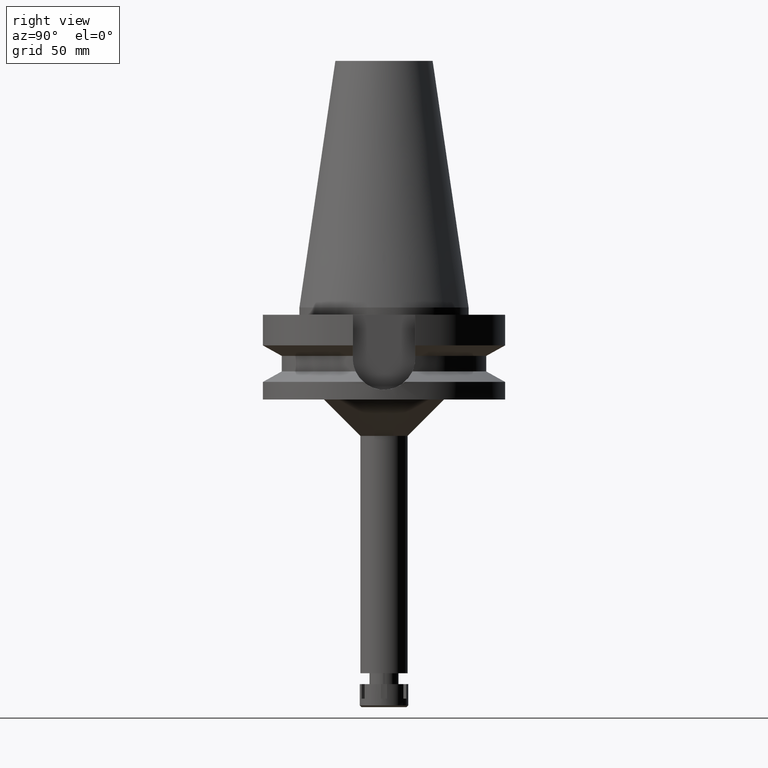
[diagram: clean part render]
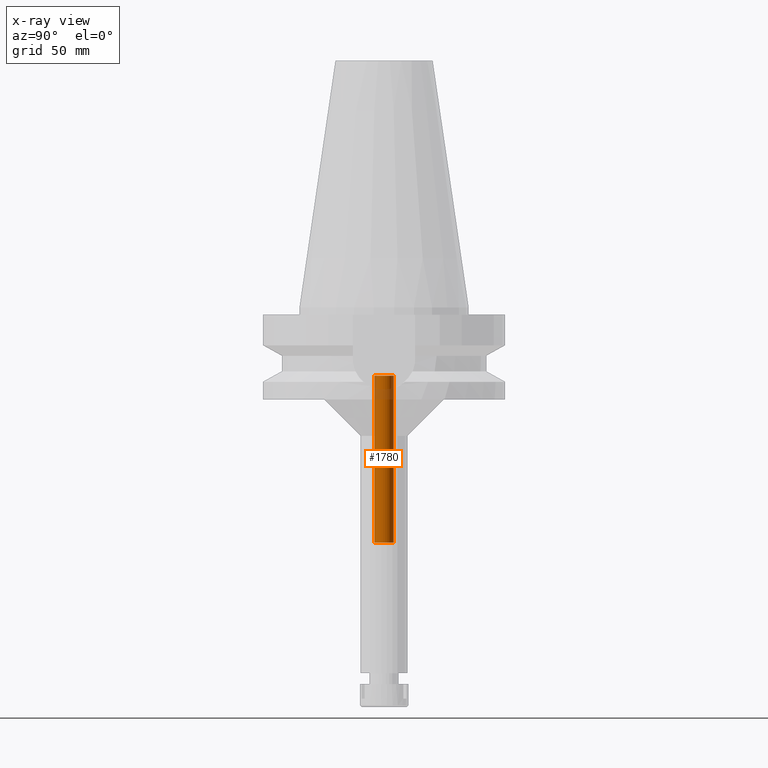
[diagram: x-ray — body ghosted, one internal face saturated and labeled with its STEP entity id]
A machine part, right view, then the same camera in x-ray: the body is ghosted and one INTERNAL B-rep face — a face not visible from any outside direction — is saturated and labeled: STEP entity #1780.
In plain terms, the highlighted cylindrical surface (edge-blend (fillet) strip) has radius 4 mm, axis along (0, 0, -1).
Its self-contained STEP definition (entity closure, byte-faithful):
#107 = VERTEX_POINT ( 'NONE', #1839 ) ;
#194 = CARTESIAN_POINT ( 'NONE',  ( 0.0000000000000000000, -4.000000000000000000, -28.19999999999999929 ) ) ;
#370 = DIRECTION ( 'NONE',  ( 0.0000000000000000000, 1.000000000000000000, 0.0000000000000000000 ) ) ;
#390 = ORIENTED_EDGE ( 'NONE', *, *, #3125, .F. ) ;
#626 = DIRECTION ( 'NONE',  ( 0.0000000000000000000, 0.0000000000000000000, 1.000000000000000000 ) ) ;
#700 = CARTESIAN_POINT ( 'NONE',  ( 0.0000000000000000000, 2.631643506687999657E-14, -97.19999999999998863 ) ) ;
#777 = DIRECTION ( 'NONE',  ( 0.0000000000000000000, 0.0000000000000000000, 1.000000000000000000 ) ) ;
#920 = CARTESIAN_POINT ( 'NONE',  ( 0.0000000000000000000, 2.631643506687999657E-14, 114.8900000000000006 ) ) ;
#1191 = VECTOR ( 'NONE', #626, 1000.000000000000000 ) ;
#1371 = CIRCLE ( 'NONE', #1559, 4.000000000000000000 ) ;
#1401 = EDGE_CURVE ( 'NONE', #1411, #3312, #1371, .T. ) ;
#1411 = VERTEX_POINT ( 'NONE', #2977 ) ;
#1503 = AXIS2_PLACEMENT_3D ( 'NONE', #2812, #777, #3599 ) ;
#1559 = AXIS2_PLACEMENT_3D ( 'NONE', #700, #2919, #370 ) ;
#1780 = ADVANCED_FACE ( 'NONE', ( #3478 ), #3213, .F. ) ;
#1801 = CIRCLE ( 'NONE', #1503, 4.000000000000000000 ) ;
#1839 = CARTESIAN_POINT ( 'NONE',  ( 0.0000000000000000000, 4.000000000000000000, -28.19999999999999929 ) ) ;
#1911 = AXIS2_PLACEMENT_3D ( 'NONE', #920, #2860, #3420 ) ;
#2113 = VERTEX_POINT ( 'NONE', #194 ) ;
#2269 = CARTESIAN_POINT ( 'NONE',  ( 0.0000000000000000000, 4.000000000000000000, -97.19999999999998863 ) ) ;
#2301 = LINE ( 'NONE', #3182, #1191 ) ;
#2527 = ORIENTED_EDGE ( 'NONE', *, *, #1401, .T. ) ;
#2607 = ORIENTED_EDGE ( 'NONE', *, *, #3275, .T. ) ;
#2812 = CARTESIAN_POINT ( 'NONE',  ( 0.0000000000000000000, 2.631643506687999657E-14, -28.19999999999999929 ) ) ;
#2837 = DIRECTION ( 'NONE',  ( 0.0000000000000000000, 0.0000000000000000000, 1.000000000000000000 ) ) ;
#2860 = DIRECTION ( 'NONE',  ( 0.0000000000000000000, 0.0000000000000000000, -1.000000000000000000 ) ) ;
#2919 = DIRECTION ( 'NONE',  ( 0.0000000000000000000, 0.0000000000000000000, -1.000000000000000000 ) ) ;
#2977 = CARTESIAN_POINT ( 'NONE',  ( 0.0000000000000000000, 4.000000000000000000, -97.19999999999998863 ) ) ;
#3125 = EDGE_CURVE ( 'NONE', #1411, #107, #3390, .T. ) ;
#3182 = CARTESIAN_POINT ( 'NONE',  ( 0.0000000000000000000, -4.000000000000000000, -97.19999999999998863 ) ) ;
#3209 = ORIENTED_EDGE ( 'NONE', *, *, #3352, .T. ) ;
#3213 = CYLINDRICAL_SURFACE ( 'NONE', #1911, 4.000000000000000000 ) ;
#3231 = VECTOR ( 'NONE', #2837, 1000.000000000000000 ) ;
#3275 = EDGE_CURVE ( 'NONE', #3312, #2113, #2301, .T. ) ;
#3312 = VERTEX_POINT ( 'NONE', #3628 ) ;
#3352 = EDGE_CURVE ( 'NONE', #2113, #107, #1801, .T. ) ;
#3390 = LINE ( 'NONE', #2269, #3231 ) ;
#3420 = DIRECTION ( 'NONE',  ( 0.0000000000000000000, -1.000000000000000000, 0.0000000000000000000 ) ) ;
#3436 = EDGE_LOOP ( 'NONE', ( #2527, #2607, #3209, #390 ) ) ;
#3478 = FACE_OUTER_BOUND ( 'NONE', #3436, .T. ) ;
#3599 = DIRECTION ( 'NONE',  ( 0.0000000000000000000, -1.000000000000000000, 0.0000000000000000000 ) ) ;
#3628 = CARTESIAN_POINT ( 'NONE',  ( 0.0000000000000000000, -4.000000000000000000, -97.19999999999998863 ) ) ;